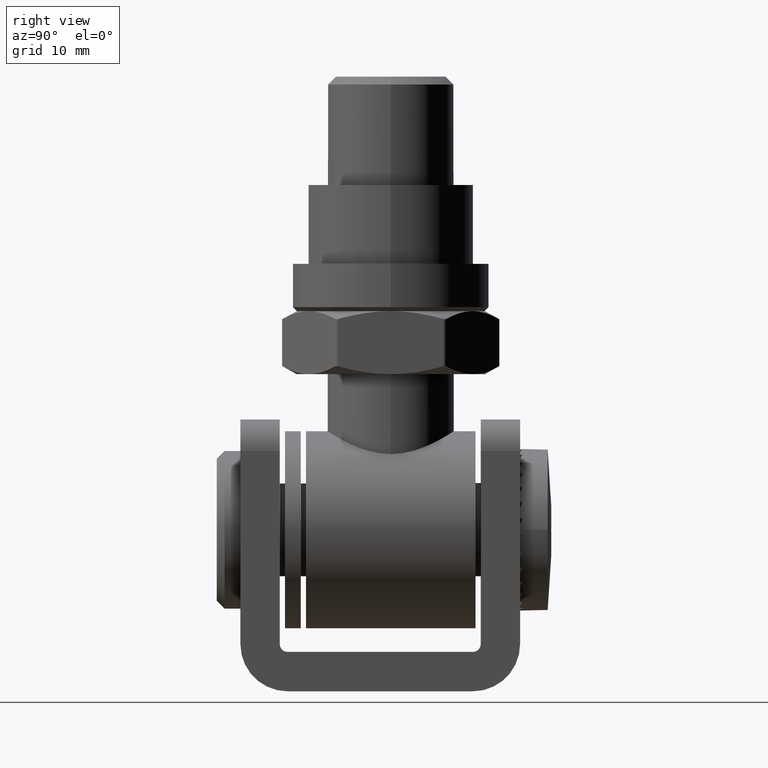
[diagram: clean part render]
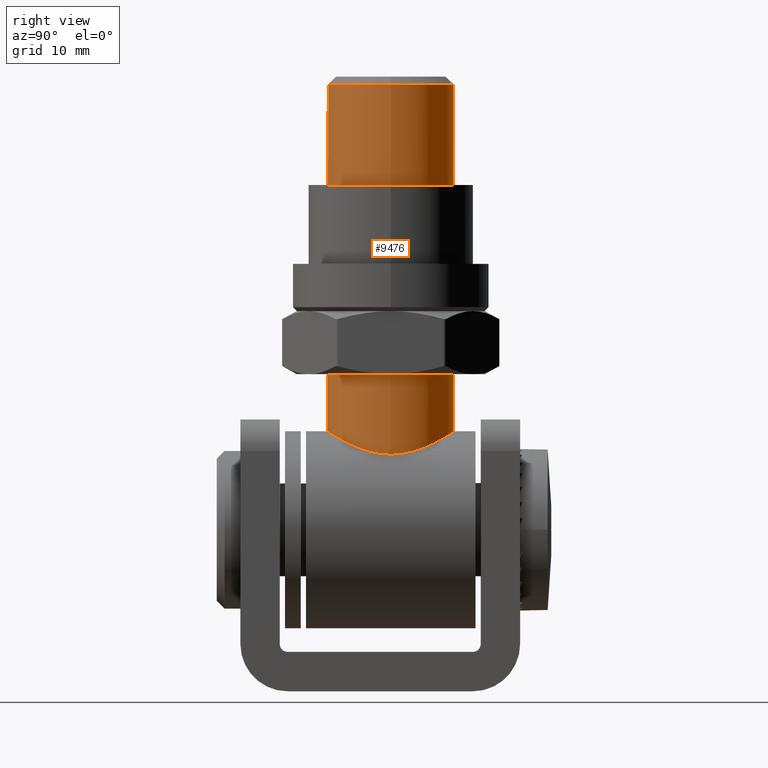
[diagram: same view with one face highlighted and labeled with its STEP entity id]
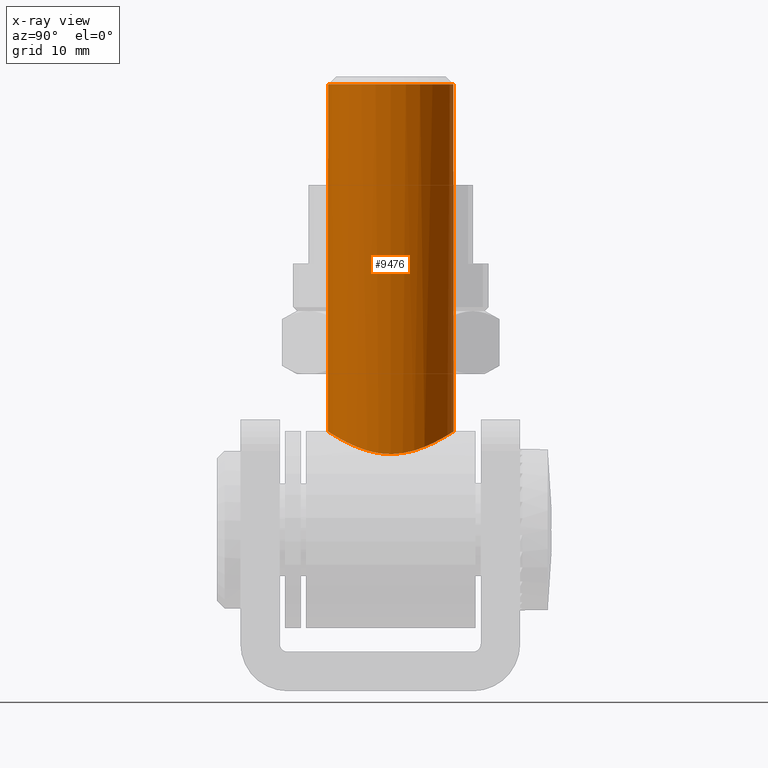
[diagram: x-ray of the same camera — body ghosted, the highlighted face saturated]
A machine part, right view. The second image highlights one B-rep face of the part: STEP entity #9476.
The next image is the same camera in x-ray: the body ghosted, the highlighted face saturated — about 0% of this face is hidden behind the body in this view.
In plain terms, the highlighted cylindrical surface (bore or boss wall) has radius 8 mm, axis along (0, 0, 1).
Its self-contained STEP definition (entity closure, byte-faithful):
#161 = DIRECTION ( 'NONE',  ( 1.000000000000000000, 0.000000000000000000, 0.000000000000000000 ) ) ;
#777 = CARTESIAN_POINT ( 'NONE',  ( 7.733156098138795898, 2.116488443085738691, 22.32174957305777241 ) ) ;
#845 = CARTESIAN_POINT ( 'NONE',  ( -6.323304469152959406, 4.907223488424203417, 23.28428361374034594 ) ) ;
#915 = CARTESIAN_POINT ( 'NONE',  ( 4.077969079923299489, 6.901622594810255862, 24.32480772774166411 ) ) ;
#997 = CARTESIAN_POINT ( 'NONE',  ( -4.938972675670422419, -6.314095043563814791, 23.99178990770703024 ) ) ;
#1075 = CARTESIAN_POINT ( 'NONE',  ( -7.150680656555899795, 3.624218441093001175, 22.75578286634504011 ) ) ;
#1366 = CARTESIAN_POINT ( 'NONE',  ( 5.290158784770015110, -6.006647883555862322, 23.82744458582126867 ) ) ;
#1419 = CARTESIAN_POINT ( 'NONE',  ( 1.314490796382522753, -7.895888375557876593, 24.93355732986029594 ) ) ;
#2123 = EDGE_LOOP ( 'NONE', ( #17679 ) ) ;
#2347 = DIRECTION ( 'NONE',  ( 1.000000000000000000, 0.000000000000000000, 0.000000000000000000 ) ) ;
#2466 = CARTESIAN_POINT ( 'NONE',  ( 2.151912218369013363, 7.723473831622878372, 24.82456837966969232 ) ) ;
#2618 = CARTESIAN_POINT ( 'NONE',  ( -7.998591649157646977, 0.3102382067607565297, 22.10585938669759187 ) ) ;
#2682 = CARTESIAN_POINT ( 'NONE',  ( -7.727609127432875091, -2.086582638450577232, 22.32566002263071425 ) ) ;
#3121 = CARTESIAN_POINT ( 'NONE',  ( 4.895109574852593681, -6.332732507795665100, 24.00368128309879978 ) ) ;
#3199 = EDGE_CURVE ( 'NONE', #9807, #9807, #5927, .T. ) ;
#4163 = CARTESIAN_POINT ( 'NONE',  ( -2.089248573396642161, 7.726996730533028490, 24.82691052266590859 ) ) ;
#4243 = CARTESIAN_POINT ( 'NONE',  ( 6.927106962908641918, 4.034537184033610835, 22.91051240348729578 ) ) ;
#4305 = CARTESIAN_POINT ( 'NONE',  ( -7.573141455986649007, -2.591775148635321102, 22.44520317511530649 ) ) ;
#4377 = CARTESIAN_POINT ( 'NONE',  ( -6.370827982271037193, -4.865450926733001502, 23.25985107857584566 ) ) ;
#4457 = CARTESIAN_POINT ( 'NONE',  ( 8.000000000000001776, 9.757819552369539906E-16, 22.10468635614927635 ) ) ;
#4526 = CARTESIAN_POINT ( 'NONE',  ( -0.2974571727273308541, -7.998995236841881074, 24.99935695390728441 ) ) ;
#4667 = CARTESIAN_POINT ( 'NONE',  ( 7.568968603837378240, -2.642084259943914493, 22.45106148992618600 ) ) ;
#4749 = CARTESIAN_POINT ( 'NONE',  ( 0.2407050989864923940, -8.000904112907983645, 25.00057863005225656 ) ) ;
#5147 = CARTESIAN_POINT ( 'NONE',  ( 8.000000000000000000, 0.000000000000000000, 69.00000000000000000 ) ) ;
#5799 = CARTESIAN_POINT ( 'NONE',  ( -8.002535385573715132, -0.5042735986296195128, 22.10257460843512334 ) ) ;
#5869 = CARTESIAN_POINT ( 'NONE',  ( -7.557621313358717785, 2.673864851608502846, 22.45970261290593584 ) ) ;
#5925 = CARTESIAN_POINT ( 'NONE',  ( 7.944861982727174698, 1.077216154405964632, 22.15130229499927950 ) ) ;
#5927 = CIRCLE ( 'NONE', #21206, 8.000000000000000000 ) ;
#6008 = CARTESIAN_POINT ( 'NONE',  ( -7.484283797690186368, -2.837807242965795229, 22.51253605373252498 ) ) ;
#6090 = CARTESIAN_POINT ( 'NONE',  ( -4.894839954791930126, 6.348977109928489071, 24.01098710860500418 ) ) ;
#6155 = CYLINDRICAL_SURFACE ( 'NONE', #12827, 8.000000000000000000 ) ;
#6158 = CARTESIAN_POINT ( 'NONE',  ( -3.396873470892245894, -7.247851482755950592, 24.53222684538588538 ) ) ;
#6439 = CARTESIAN_POINT ( 'NONE',  ( 3.344213590382891343, -7.272255594718672889, 24.54695537697011432 ) ) ;
#7478 = CARTESIAN_POINT ( 'NONE',  ( -1.042361930456505492, 7.936372264434696788, 24.95935801076277016 ) ) ;
#7553 = CARTESIAN_POINT ( 'NONE',  ( -7.720288124928917028, 2.163341329871695695, 22.33192668377207113 ) ) ;
#7641 = CARTESIAN_POINT ( 'NONE',  ( 1.110728097199915387, 7.940343652350311920, 24.96162088312793514 ) ) ;
#7713 = CARTESIAN_POINT ( 'NONE',  ( -7.184069897211316835, -3.558054997097418681, 22.73233445889194826 ) ) ;
#7783 = CARTESIAN_POINT ( 'NONE',  ( -4.306198869315799982, -6.746996600373189601, 24.23702785595132880 ) ) ;
#7865 = CARTESIAN_POINT ( 'NONE',  ( 1.045398777421120418, -7.935973985928445273, 24.95910418812548670 ) ) ;
#8075 = CARTESIAN_POINT ( 'NONE',  ( 4.042478787381215355, -6.908446655177316487, 24.33074556269135869 ) ) ;
#8151 = CARTESIAN_POINT ( 'NONE',  ( 4.689927936537593212, -6.486195173116453105, 24.08907666523689528 ) ) ;
#9180 = CARTESIAN_POINT ( 'NONE',  ( 0.5798439864911839603, 7.997339383565393867, 24.99829721660192305 ) ) ;
#9254 = CARTESIAN_POINT ( 'NONE',  ( -7.925958969532775455, 1.118737722377453281, 22.16594805705183191 ) ) ;
#9320 = CARTESIAN_POINT ( 'NONE',  ( 4.924629149947180373, 6.325365917754991685, 23.99799710168513656 ) ) ;
#9400 = CARTESIAN_POINT ( 'NONE',  ( 8.000000000000001776, 9.757819552369539906E-16, 22.10468635614927635 ) ) ;
#9476 = ADVANCED_FACE ( 'NONE', ( #11958, #11172 ), #6155, .T. ) ;
#9490 = CARTESIAN_POINT ( 'NONE',  ( -5.288232630848650473, 6.024255444852268049, 23.83342973297282796 ) ) ;
#9551 = CARTESIAN_POINT ( 'NONE',  ( 2.108765420479956632, -7.735946326957305885, 24.83239814943448565 ) ) ;
#9807 = VERTEX_POINT ( 'NONE', #5147 ) ;
#9857 = CARTESIAN_POINT ( 'NONE',  ( 0.5092763689232310265, -7.988315172126283059, 24.99250868938885972 ) ) ;
#10605 = VERTEX_POINT ( 'NONE', #18949 ) ;
#10960 = CARTESIAN_POINT ( 'NONE',  ( 7.574021915069558908, 2.627296868476371561, 22.44717102754599125 ) ) ;
#10974 = CARTESIAN_POINT ( 'NONE',  ( 0.000000000000000000, 0.000000000000000000, 69.00000000000000000 ) ) ;
#11038 = CARTESIAN_POINT ( 'NONE',  ( -4.034135332901207072, 6.927822214899963527, 24.34010280839386198 ) ) ;
#11111 = CARTESIAN_POINT ( 'NONE',  ( -5.331166988497521686, -5.986706030023140279, 23.81335093836381489 ) ) ;
#11172 = FACE_OUTER_BOUND ( 'NONE', #2123, .T. ) ;
#11175 = CARTESIAN_POINT ( 'NONE',  ( -6.477316523627481004, 4.702033813157901143, 23.19218112865063475 ) ) ;
#11519 = ORIENTED_EDGE ( 'NONE', *, *, #3199, .T. ) ;
#11544 = CARTESIAN_POINT ( 'NONE',  ( -4.087473285484916730, -6.881843946547217428, 24.31522583258022863 ) ) ;
#11958 = FACE_OUTER_BOUND ( 'NONE', #17001, .T. ) ;
#12595 = CARTESIAN_POINT ( 'NONE',  ( 6.356090822267281837, 4.884916644531084984, 23.26864377894587932 ) ) ;
#12753 = CARTESIAN_POINT ( 'NONE',  ( -1.830630455624721264, 7.792305838248459793, 24.86803892192443399 ) ) ;
#12827 = AXIS2_PLACEMENT_3D ( 'NONE', #17165, #18785, #161 ) ;
#12904 = CARTESIAN_POINT ( 'NONE',  ( -1.307186916885223260, 7.896993130691323692, 24.93426141769678850 ) ) ;
#12983 = CARTESIAN_POINT ( 'NONE',  ( 5.480806777110227124, -5.833178621820524157, 23.73617887362679468 ) ) ;
#13042 = CARTESIAN_POINT ( 'NONE',  ( 6.022115724631410316, -5.291028751336782854, 23.46120233513477871 ) ) ;
#13199 = CARTESIAN_POINT ( 'NONE',  ( 7.163689336258917351, -3.598812311873125225, 22.74668071112485634 ) ) ;
#13264 = CARTESIAN_POINT ( 'NONE',  ( 4.263610896848274656, -6.774051519877277272, 24.25260584393651087 ) ) ;
#14138 = EDGE_CURVE ( 'NONE', #10605, #10605, #19934, .T. ) ;
#14322 = CARTESIAN_POINT ( 'NONE',  ( -2.850959130328165170, 7.479375526213291714, 24.67310839935929323 ) ) ;
#14462 = CARTESIAN_POINT ( 'NONE',  ( -6.905907626272864697, 4.070312662036860374, 22.92458183323949328 ) ) ;
#14551 = CARTESIAN_POINT ( 'NONE',  ( 2.667693104955244365, 7.560163069758929488, 24.72208889438390500 ) ) ;
#14618 = CARTESIAN_POINT ( 'NONE',  ( 8.000000000000001776, 0.5454683496511112395, 22.10468635614927635 ) ) ;
#14681 = CARTESIAN_POINT ( 'NONE',  ( 6.913811262488466447, -4.056889980319548172, 22.91931913892656070 ) ) ;
#14898 = CARTESIAN_POINT ( 'NONE',  ( -2.666894575873834494, -7.560957300139381942, 24.72254483589563279 ) ) ;
#15970 = CARTESIAN_POINT ( 'NONE',  ( 7.171814772937421978, 3.582397195696790604, 22.74095172744607041 ) ) ;
#16040 = CARTESIAN_POINT ( 'NONE',  ( -5.826899362754033973, 5.487395404200230864, 23.56063977733151305 ) ) ;
#16119 = CARTESIAN_POINT ( 'NONE',  ( 6.035418748259202104, 5.275432237523999035, 23.45372309622496942 ) ) ;
#16193 = CARTESIAN_POINT ( 'NONE',  ( -0.2329977738218910188, 8.001195292176246809, 25.00076498171978301 ) ) ;
#16267 = CARTESIAN_POINT ( 'NONE',  ( -7.950427690527956948, -1.037997620068274340, 22.14669702465948120 ) ) ;
#16428 = CARTESIAN_POINT ( 'NONE',  ( -3.633323965834282188, -7.132052364044704440, 24.46269017795405532 ) ) ;
#16643 = CARTESIAN_POINT ( 'NONE',  ( -2.162078596445621059, -7.720895130739025447, 24.82294607310168999 ) ) ;
#17001 = EDGE_LOOP ( 'NONE', ( #11519 ) ) ;
#17165 = CARTESIAN_POINT ( 'NONE',  ( 0.000000000000000000, 0.000000000000000000, -0.002000000000002000178 ) ) ;
#17679 = ORIENTED_EDGE ( 'NONE', *, *, #14138, .T. ) ;
#17680 = CARTESIAN_POINT ( 'NONE',  ( -7.793482658790093609, -1.825736269983523341, 22.27323610858296732 ) ) ;
#17762 = CARTESIAN_POINT ( 'NONE',  ( -0.5062884801357938613, 7.988503933067514495, 24.99262952341521782 ) ) ;
#17818 = CARTESIAN_POINT ( 'NONE',  ( 5.322005861619238942, 5.994390575232531049, 23.81753430498451252 ) ) ;
#17970 = CARTESIAN_POINT ( 'NONE',  ( -5.997958754650831281, 5.299954014183464679, 23.46856614369926675 ) ) ;
#18054 = CARTESIAN_POINT ( 'NONE',  ( -1.107275630834646085, -7.927654756466890440, 24.95380387079436701 ) ) ;
#18192 = CARTESIAN_POINT ( 'NONE',  ( 7.944073626643611163, -1.087015225480098879, 22.15200189902790484 ) ) ;
#18274 = CARTESIAN_POINT ( 'NONE',  ( 8.000000000000001776, -0.5454683496511073537, 22.10468635614927990 ) ) ;
#18343 = CARTESIAN_POINT ( 'NONE',  ( 3.583075828995047729, -7.157502185646138493, 24.47788557798244113 ) ) ;
#18785 = DIRECTION ( 'NONE',  ( 0.000000000000000000, 0.000000000000000000, 1.000000000000000000 ) ) ;
#18949 = CARTESIAN_POINT ( 'NONE',  ( 8.000000000000000000, 0.000000000000000000, 22.10468635614927635 ) ) ;
#19437 = CARTESIAN_POINT ( 'NONE',  ( -7.884119729567821366, 1.382526564013050407, 22.20028679223384671 ) ) ;
#19513 = CARTESIAN_POINT ( 'NONE',  ( -7.983217010569969574, 0.5836487302595549931, 22.11871215862535323 ) ) ;
#19593 = CARTESIAN_POINT ( 'NONE',  ( -6.937051407935233449, -4.017135753717872682, 22.90380517774535463 ) ) ;
#19665 = CARTESIAN_POINT ( 'NONE',  ( 3.627778838024812380, 7.149256803749031164, 24.47227063454662854 ) ) ;
#19731 = CARTESIAN_POINT ( 'NONE',  ( 7.726767025061623606, -2.141723424343232374, 22.32682643505994591 ) ) ;
#19807 = CARTESIAN_POINT ( 'NONE',  ( 2.615350972223471349, -7.578773197831191411, 24.73362304729600680 ) ) ;
#19934 = B_SPLINE_CURVE_WITH_KNOTS ( 'NONE', 3,
 ( #9400, #14618, #5925, #777, #10960, #15970, #4243, #12595, #16119, #17818, #9320, #915, #19665, #14551, #2466, #7641, #9180, #16193, #17762, #7478, #12904, #12753, #4163, #21228, #14322, #21069, #11038, #6090, #9490, #16040, #17970, #845, #11175, #14462, #1075, #5869, #7553, #19437, #9254, #19513, #2618, #5799, #16267, #17680, #2682, #4305, #6008, #7713, #19593, #4377, #21294, #11111, #997, #7783, #11544, #16428, #6158, #14898, #16643, #20007, #18054, #21757, #4526, #4749, #9857, #7865, #1419, #9551, #19807, #6439, #18343, #8075, #13264, #8151, #3121, #1366, #12983, #13042, #21598, #14681, #13199, #4667, #19731, #18192, #18274, #4457 ),
 .UNSPECIFIED., .T., .F.,
 ( 4, 2, 2, 2, 2, 2, 2, 2, 2, 2, 2, 2, 2, 2, 2, 2, 2, 2, 2, 2, 2, 2, 2, 2, 2, 2, 2, 2, 2, 2, 2, 2, 2, 2, 2, 2, 2, 2, 2, 2, 2, 2, 4 ),
 ( 0.000000000000000000, 0.001607618632887165746, 0.003215237265774331492, 0.004822855898661499406, 0.006430474531548666453, 0.008038093164435832633, 0.009645711797323002282, 0.01125333043021016846, 0.01286094906309733464, 0.01366475837954091860, 0.01446856769598450256, 0.01527237701242808304, 0.01607618632887166527, 0.01768380496175883318, 0.01929142359464600109, 0.02009523291108957985, 0.02089904222753316554, 0.02250666086042032651, 0.02411427949330749096, 0.02491808880975106971, 0.02572189812619464847, 0.02732951675908181291, 0.02813332607552539513, 0.02893713539196898082, 0.03054475402485613833, 0.03215237265774329584, 0.03375999129063046028, 0.03456380060707403556, 0.03536760992351761779, 0.03697522855640476835, 0.03777903787284834364, 0.03858284718929191892, 0.03938665650573550114, 0.04019046582217907643, 0.04179808445506623393, 0.04260189377150980922, 0.04340570308795338450, 0.04420951240439695978, 0.04501332172084054201, 0.04662094035372769951, 0.04822855898661485008, 0.04983617761950200065, 0.05144379625238915815 ),
 .UNSPECIFIED. ) ;
#20007 = CARTESIAN_POINT ( 'NONE',  ( -1.375781500358162601, -7.885361541016476572, 24.92687093389633546 ) ) ;
#20866 = DIRECTION ( 'NONE',  ( 0.000000000000000000, 0.000000000000000000, -1.000000000000000000 ) ) ;
#21069 = CARTESIAN_POINT ( 'NONE',  ( -3.577842290917762291, 7.174618417797542058, 24.48745964759564941 ) ) ;
#21206 = AXIS2_PLACEMENT_3D ( 'NONE', #10974, #20866, #2347 ) ;
#21228 = CARTESIAN_POINT ( 'NONE',  ( -2.600330002857883738, 7.570318484142211979, 24.72930768733407447 ) ) ;
#21294 = CARTESIAN_POINT ( 'NONE',  ( -6.050648417971461690, -5.258483077015713825, 23.44545132170997448 ) ) ;
#21598 = CARTESIAN_POINT ( 'NONE',  ( 6.343829228681411969, -4.900507443424301002, 23.27584466338676705 ) ) ;
#21757 = CARTESIAN_POINT ( 'NONE',  ( -0.5670481200250333531, -7.984499088230168518, 24.99006591673675359 ) ) ;